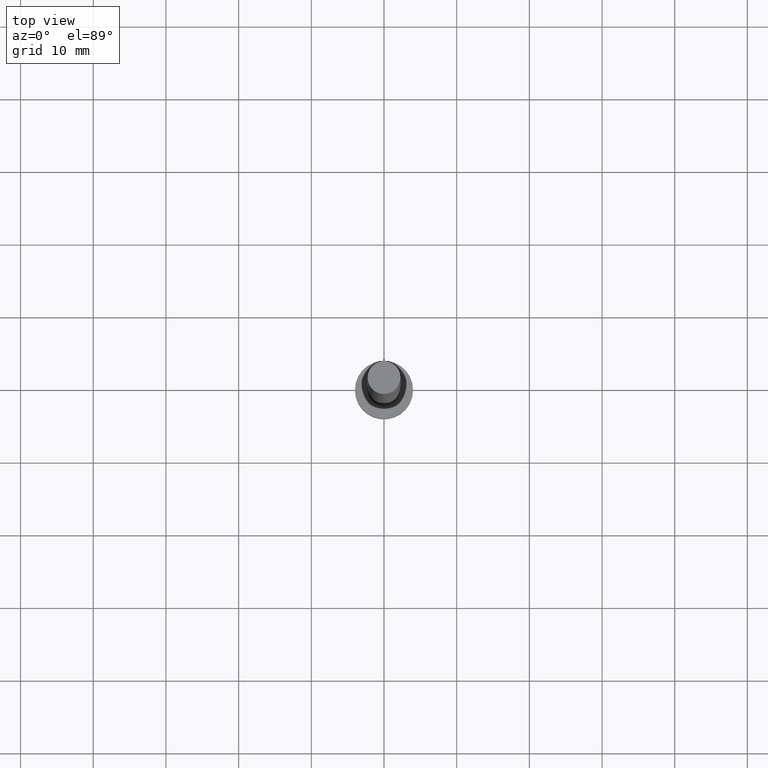
[diagram: clean part render]
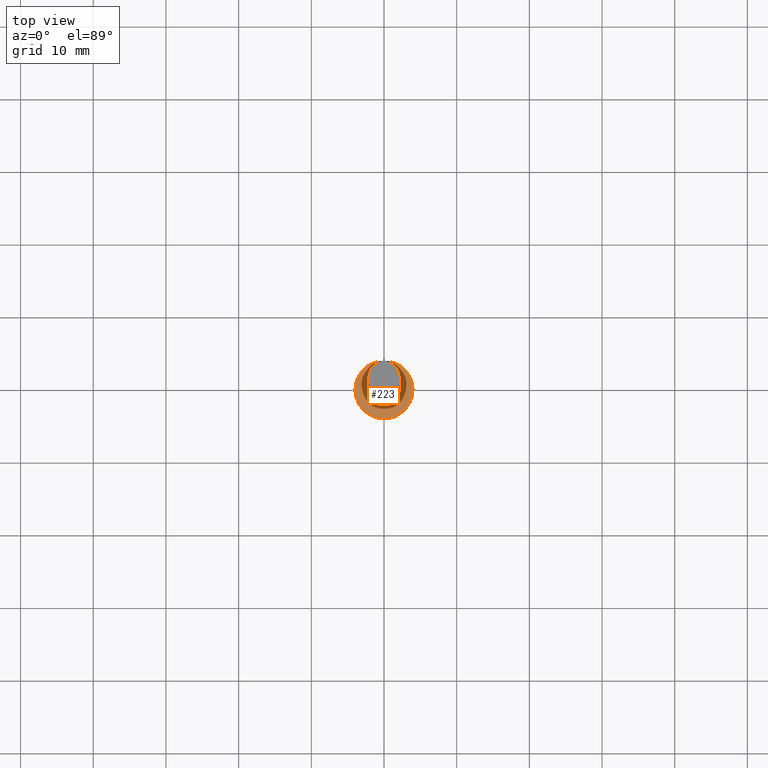
[diagram: same view with one face highlighted and labeled with its STEP entity id]
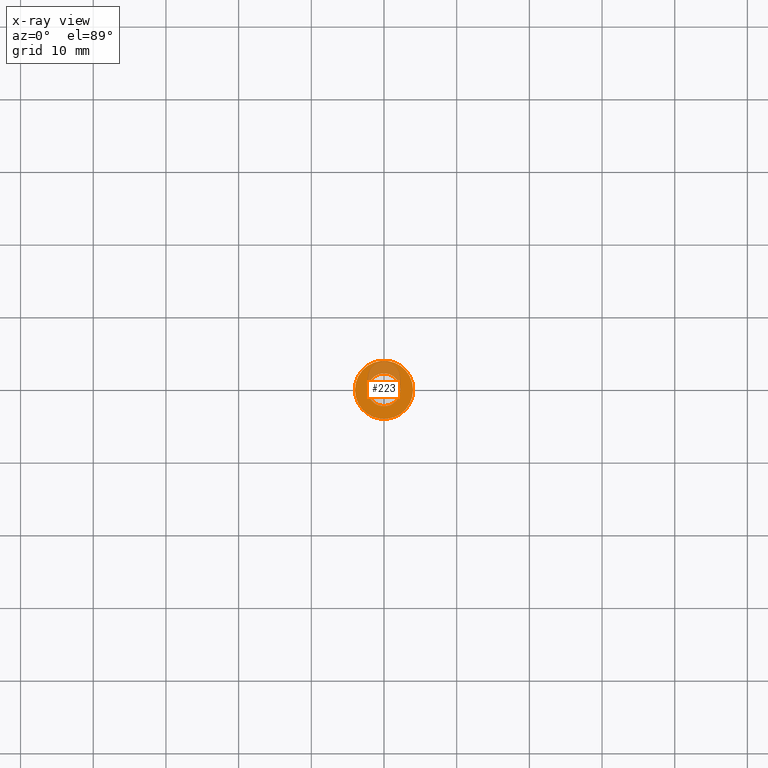
[diagram: x-ray of the same camera — body ghosted, the highlighted face saturated]
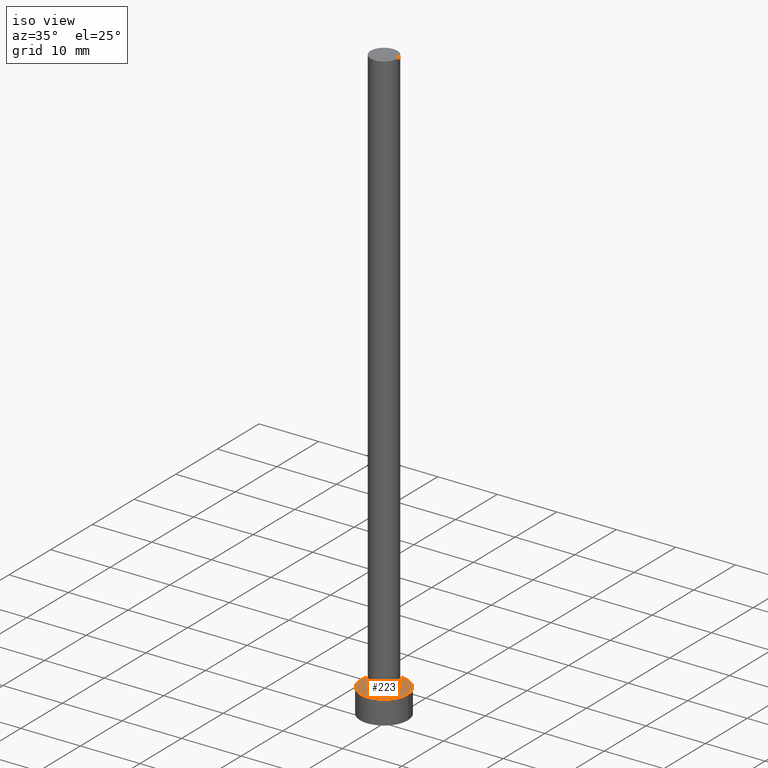
[diagram: same view with one face highlighted and labeled with its STEP entity id]
A machine part, top view. The second image highlights one B-rep face of the part: STEP entity #223.
The next image is the same camera in x-ray: the body ghosted, the highlighted face saturated — about 22% of this face is hidden behind the body in this view.
A second angle (iso view) of the same face is appended — the face is thin or edge-on in the first view.
In plain terms, the highlighted planar face has unit normal (0, 0, 1).
Its self-contained STEP definition (entity closure, byte-faithful):
#2 = ORIENTED_EDGE ( 'NONE', *, *, #140, .F. ) ;
#4 = CARTESIAN_POINT ( 'NONE',  ( 0.000000000000000000, 0.000000000000000000, 4.000000000000000000 ) ) ;
#5 = ORIENTED_EDGE ( 'NONE', *, *, #35, .F. ) ;
#16 = AXIS2_PLACEMENT_3D ( 'NONE', #250, #80, #142 ) ;
#18 = DIRECTION ( 'NONE',  ( 0.000000000000000000, 0.000000000000000000, 1.000000000000000000 ) ) ;
#30 = VERTEX_POINT ( 'NONE', #87 ) ;
#35 = EDGE_CURVE ( 'NONE', #246, #30, #163, .T. ) ;
#57 = AXIS2_PLACEMENT_3D ( 'NONE', #4, #133, #64 ) ;
#58 = CARTESIAN_POINT ( 'NONE',  ( 2.250000000000000000, 2.755455298081544285E-16, 4.000000000000000000 ) ) ;
#63 = EDGE_CURVE ( 'NONE', #129, #203, #253, .T. ) ;
#64 = DIRECTION ( 'NONE',  ( 1.000000000000000000, 0.000000000000000000, 0.000000000000000000 ) ) ;
#74 = CARTESIAN_POINT ( 'NONE',  ( 0.000000000000000000, 0.000000000000000000, 4.000000000000000000 ) ) ;
#80 = DIRECTION ( 'NONE',  ( 0.000000000000000000, 0.000000000000000000, 1.000000000000000000 ) ) ;
#87 = CARTESIAN_POINT ( 'NONE',  ( -2.250000000000000000, 0.000000000000000000, 4.000000000000000000 ) ) ;
#93 = EDGE_LOOP ( 'NONE', ( #2, #5 ) ) ;
#113 = CARTESIAN_POINT ( 'NONE',  ( -4.000000000000000000, 0.000000000000000000, 4.000000000000000000 ) ) ;
#116 = PLANE ( 'NONE',  #16 ) ;
#129 = VERTEX_POINT ( 'NONE', #113 ) ;
#133 = DIRECTION ( 'NONE',  ( 0.000000000000000000, 0.000000000000000000, 1.000000000000000000 ) ) ;
#135 = AXIS2_PLACEMENT_3D ( 'NONE', #74, #18, #209 ) ;
#138 = DIRECTION ( 'NONE',  ( 1.000000000000000000, 0.000000000000000000, 0.000000000000000000 ) ) ;
#140 = EDGE_CURVE ( 'NONE', #30, #246, #179, .T. ) ;
#142 = DIRECTION ( 'NONE',  ( 1.000000000000000000, 0.000000000000000000, -0.000000000000000000 ) ) ;
#151 = EDGE_LOOP ( 'NONE', ( #238, #224 ) ) ;
#159 = CARTESIAN_POINT ( 'NONE',  ( 0.000000000000000000, 0.000000000000000000, 4.000000000000000000 ) ) ;
#160 = CARTESIAN_POINT ( 'NONE',  ( 4.000000000000000000, 4.898587196589412829E-16, 4.000000000000000000 ) ) ;
#163 = CIRCLE ( 'NONE', #57, 2.250000000000000000 ) ;
#164 = AXIS2_PLACEMENT_3D ( 'NONE', #159, #232, #138 ) ;
#168 = DIRECTION ( 'NONE',  ( 0.000000000000000000, 0.000000000000000000, 1.000000000000000000 ) ) ;
#170 = CARTESIAN_POINT ( 'NONE',  ( 0.000000000000000000, 0.000000000000000000, 4.000000000000000000 ) ) ;
#179 = CIRCLE ( 'NONE', #135, 2.250000000000000000 ) ;
#182 = CIRCLE ( 'NONE', #164, 4.000000000000000000 ) ;
#193 = FACE_BOUND ( 'NONE', #93, .T. ) ;
#203 = VERTEX_POINT ( 'NONE', #160 ) ;
#209 = DIRECTION ( 'NONE',  ( 1.000000000000000000, 0.000000000000000000, 0.000000000000000000 ) ) ;
#218 = DIRECTION ( 'NONE',  ( 1.000000000000000000, 0.000000000000000000, 0.000000000000000000 ) ) ;
#223 = ADVANCED_FACE ( 'NONE', ( #193, #255 ), #116, .T. ) ;
#224 = ORIENTED_EDGE ( 'NONE', *, *, #242, .T. ) ;
#232 = DIRECTION ( 'NONE',  ( 0.000000000000000000, 0.000000000000000000, 1.000000000000000000 ) ) ;
#238 = ORIENTED_EDGE ( 'NONE', *, *, #63, .T. ) ;
#241 = AXIS2_PLACEMENT_3D ( 'NONE', #170, #168, #218 ) ;
#242 = EDGE_CURVE ( 'NONE', #203, #129, #182, .T. ) ;
#246 = VERTEX_POINT ( 'NONE', #58 ) ;
#250 = CARTESIAN_POINT ( 'NONE',  ( 0.000000000000000000, 0.000000000000000000, 4.000000000000000000 ) ) ;
#253 = CIRCLE ( 'NONE', #241, 4.000000000000000000 ) ;
#255 = FACE_OUTER_BOUND ( 'NONE', #151, .T. ) ;